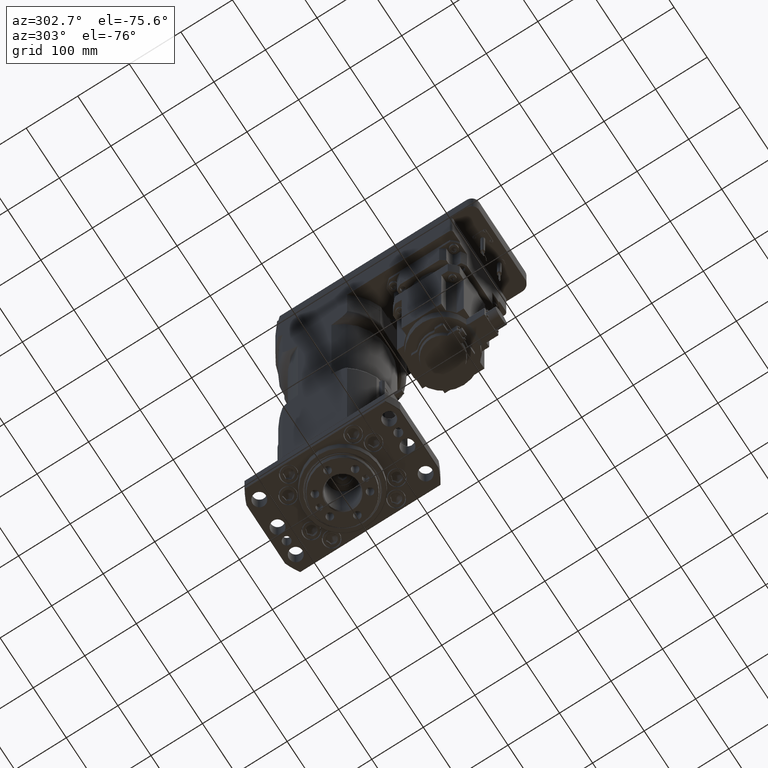
[diagram: clean part render]
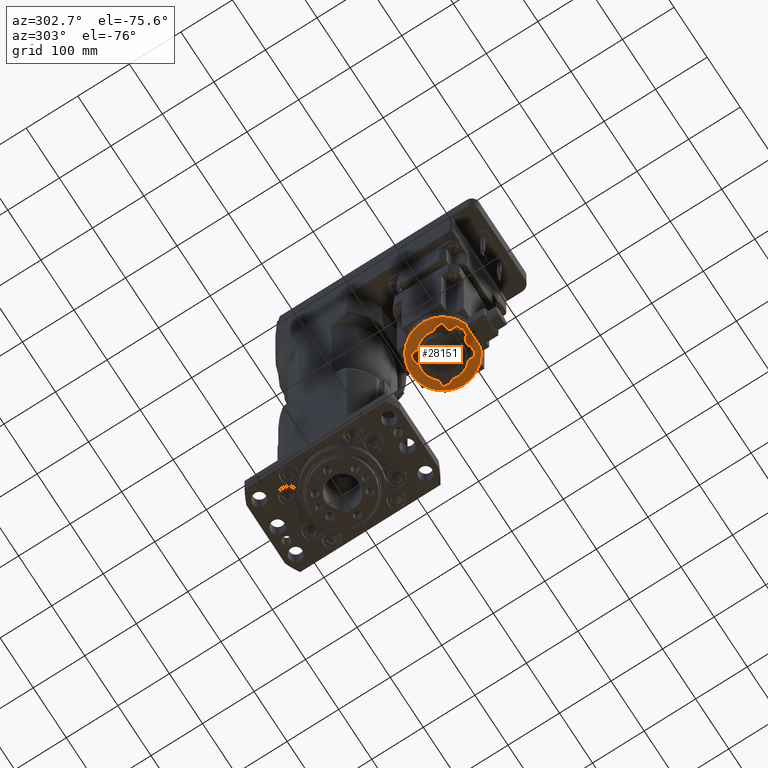
[diagram: same view with one face highlighted and labeled with its STEP entity id]
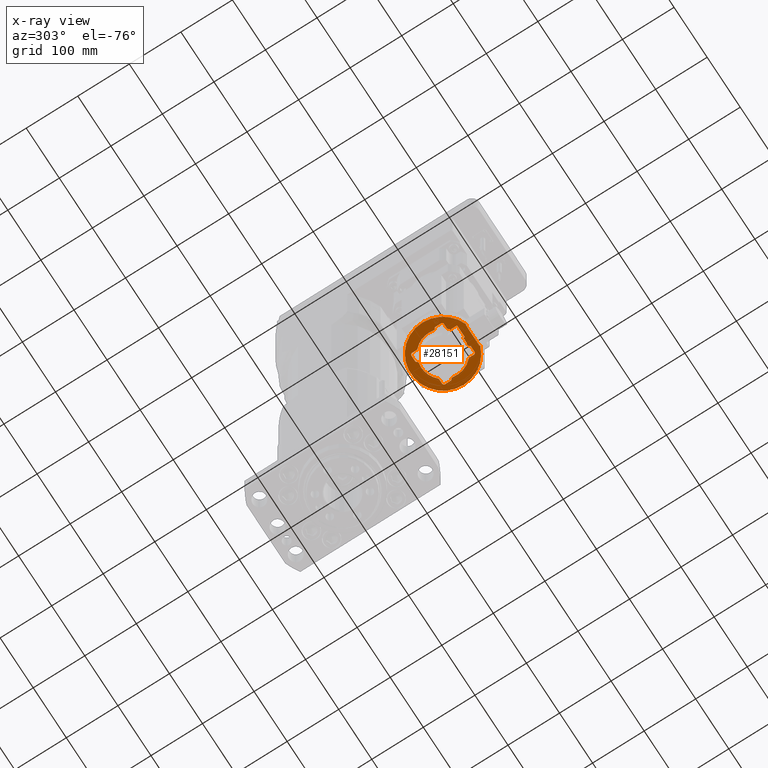
[diagram: x-ray of the same camera — body ghosted, the highlighted face saturated]
A machine part, auxiliary view. The second image highlights one B-rep face of the part: STEP entity #28151.
The next image is the same camera in x-ray: the body ghosted, the highlighted face saturated — about 0% of this face is hidden behind the body in this view.
In plain terms, the highlighted planar face has unit normal (-0, -0, 1).
Its self-contained STEP definition (entity closure, byte-faithful):
#1278=LINE('',#39887,#2897);
#1300=LINE('',#39997,#2919);
#2452=LINE('',#47689,#4071);
#2453=LINE('',#47690,#4072);
#2454=LINE('',#47693,#4073);
#2455=LINE('',#47697,#4074);
#2456=LINE('',#47701,#4075);
#2457=LINE('',#47709,#4076);
#2458=LINE('',#47713,#4077);
#2459=LINE('',#47717,#4078);
#2460=LINE('',#47722,#4079);
#2461=LINE('',#47724,#4080);
#2462=LINE('',#47730,#4081);
#2463=LINE('',#47734,#4082);
#2464=LINE('',#47738,#4083);
#2465=LINE('',#47746,#4084);
#2466=LINE('',#47750,#4085);
#2467=LINE('',#47754,#4086);
#2897=VECTOR('',#32071,10.);
#2919=VECTOR('',#32159,10.);
#4071=VECTOR('',#37019,10.);
#4072=VECTOR('',#37020,10.);
#4073=VECTOR('',#37021,10.);
#4074=VECTOR('',#37024,10.);
#4075=VECTOR('',#37027,10.);
#4076=VECTOR('',#37034,10.);
#4077=VECTOR('',#37037,10.);
#4078=VECTOR('',#37040,10.);
#4079=VECTOR('',#37045,10.);
#4080=VECTOR('',#37046,10.);
#4081=VECTOR('',#37051,10.);
#4082=VECTOR('',#37054,10.);
#4083=VECTOR('',#37057,10.);
#4084=VECTOR('',#37064,10.);
#4085=VECTOR('',#37067,10.);
#4086=VECTOR('',#37070,10.);
#4761=FACE_BOUND('',#8441,.T.);
#6492=FACE_OUTER_BOUND('',#8440,.T.);
#8440=EDGE_LOOP('',(#21969,#21970,#21971,#21972));
#8441=EDGE_LOOP('',(#21973,#21974,#21975,#21976,#21977,#21978,#21979,#21980,
#21981,#21982,#21983,#21984,#21985,#21986,#21987,#21988,#21989,#21990,#21991,
#21992,#21993,#21994,#21995,#21996,#21997,#21998,#21999,#22000,#22001,#22002,
#22003,#22004,#22005,#22006,#22007,#22008));
#10124=CIRCLE('',#30850,62.5);
#10125=CIRCLE('',#30851,2.50000000004479);
#10126=CIRCLE('',#30852,3.5);
#10127=CIRCLE('',#30853,4.49999999999986);
#10128=CIRCLE('',#30854,42.5000000000069);
#10129=CIRCLE('',#30855,1.50000000001775);
#10130=CIRCLE('',#30856,2.50000000004479);
#10131=CIRCLE('',#30857,3.5);
#10132=CIRCLE('',#30858,4.49999999999986);
#10133=CIRCLE('',#30859,42.5000000000069);
#10134=CIRCLE('',#30860,42.5000000000069);
#10135=CIRCLE('',#30861,1.50000000001775);
#10136=CIRCLE('',#30862,2.50000000004479);
#10137=CIRCLE('',#30863,3.5);
#10138=CIRCLE('',#30864,4.49999999999986);
#10139=CIRCLE('',#30865,42.5000000000069);
#10140=CIRCLE('',#30866,2.50000000004479);
#10141=CIRCLE('',#30867,3.5);
#10142=CIRCLE('',#30868,3.5);
#10143=CIRCLE('',#30869,4.49999999999986);
#10144=CIRCLE('',#30870,42.5000000000069);
#10145=CIRCLE('',#30871,1.50000000001775);
#10661=VERTEX_POINT('',#39885);
#10662=VERTEX_POINT('',#39886);
#10710=VERTEX_POINT('',#39994);
#10711=VERTEX_POINT('',#39996);
#12415=VERTEX_POINT('',#47686);
#12416=VERTEX_POINT('',#47687);
#12417=VERTEX_POINT('',#47691);
#12418=VERTEX_POINT('',#47692);
#12419=VERTEX_POINT('',#47694);
#12420=VERTEX_POINT('',#47696);
#12421=VERTEX_POINT('',#47698);
#12422=VERTEX_POINT('',#47700);
#12423=VERTEX_POINT('',#47702);
#12424=VERTEX_POINT('',#47704);
#12425=VERTEX_POINT('',#47706);
#12426=VERTEX_POINT('',#47708);
#12427=VERTEX_POINT('',#47710);
#12428=VERTEX_POINT('',#47712);
#12429=VERTEX_POINT('',#47714);
#12430=VERTEX_POINT('',#47716);
#12431=VERTEX_POINT('',#47718);
#12432=VERTEX_POINT('',#47720);
#12433=VERTEX_POINT('',#47723);
#12434=VERTEX_POINT('',#47725);
#12435=VERTEX_POINT('',#47727);
#12436=VERTEX_POINT('',#47729);
#12437=VERTEX_POINT('',#47731);
#12438=VERTEX_POINT('',#47733);
#12439=VERTEX_POINT('',#47735);
#12440=VERTEX_POINT('',#47737);
#12441=VERTEX_POINT('',#47739);
#12442=VERTEX_POINT('',#47741);
#12443=VERTEX_POINT('',#47743);
#12444=VERTEX_POINT('',#47745);
#12445=VERTEX_POINT('',#47747);
#12446=VERTEX_POINT('',#47749);
#12447=VERTEX_POINT('',#47751);
#12448=VERTEX_POINT('',#47753);
#12449=VERTEX_POINT('',#47755);
#12450=VERTEX_POINT('',#47757);
#13230=EDGE_CURVE('',#10661,#10662,#1278,.T.);
#13282=EDGE_CURVE('',#10711,#10710,#1300,.T.);
#15825=EDGE_CURVE('',#12415,#12416,#10124,.T.);
#15826=EDGE_CURVE('',#12416,#10711,#2452,.T.);
#15827=EDGE_CURVE('',#10710,#12415,#2453,.T.);
#15828=EDGE_CURVE('',#12417,#12418,#2454,.T.);
#15829=EDGE_CURVE('',#12418,#12419,#10125,.T.);
#15830=EDGE_CURVE('',#12419,#12420,#2455,.T.);
#15831=EDGE_CURVE('',#12420,#12421,#10126,.T.);
#15832=EDGE_CURVE('',#12421,#12422,#2456,.T.);
#15833=EDGE_CURVE('',#12422,#12423,#10127,.T.);
#15834=EDGE_CURVE('',#12423,#12424,#10128,.T.);
#15835=EDGE_CURVE('',#12424,#12425,#10129,.T.);
#15836=EDGE_CURVE('',#12425,#12426,#2457,.T.);
#15837=EDGE_CURVE('',#12426,#12427,#10130,.T.);
#15838=EDGE_CURVE('',#12427,#12428,#2458,.T.);
#15839=EDGE_CURVE('',#12428,#12429,#10131,.T.);
#15840=EDGE_CURVE('',#12429,#12430,#2459,.T.);
#15841=EDGE_CURVE('',#12430,#12431,#10132,.T.);
#15842=EDGE_CURVE('',#12431,#12432,#10133,.T.);
#15843=EDGE_CURVE('',#12432,#10661,#2460,.T.);
#15844=EDGE_CURVE('',#10662,#12433,#2461,.T.);
#15845=EDGE_CURVE('',#12433,#12434,#10134,.T.);
#15846=EDGE_CURVE('',#12434,#12435,#10135,.T.);
#15847=EDGE_CURVE('',#12435,#12436,#2462,.T.);
#15848=EDGE_CURVE('',#12436,#12437,#10136,.T.);
#15849=EDGE_CURVE('',#12437,#12438,#2463,.T.);
#15850=EDGE_CURVE('',#12438,#12439,#10137,.T.);
#15851=EDGE_CURVE('',#12439,#12440,#2464,.T.);
#15852=EDGE_CURVE('',#12440,#12441,#10138,.T.);
#15853=EDGE_CURVE('',#12441,#12442,#10139,.T.);
#15854=EDGE_CURVE('',#12442,#12443,#10140,.T.);
#15855=EDGE_CURVE('',#12443,#12444,#2465,.T.);
#15856=EDGE_CURVE('',#12444,#12445,#10141,.T.);
#15857=EDGE_CURVE('',#12445,#12446,#2466,.T.);
#15858=EDGE_CURVE('',#12446,#12447,#10142,.T.);
#15859=EDGE_CURVE('',#12447,#12448,#2467,.T.);
#15860=EDGE_CURVE('',#12448,#12449,#10143,.T.);
#15861=EDGE_CURVE('',#12449,#12450,#10144,.T.);
#15862=EDGE_CURVE('',#12450,#12417,#10145,.T.);
#21969=ORIENTED_EDGE('',*,*,#15825,.T.);
#21970=ORIENTED_EDGE('',*,*,#15826,.T.);
#21971=ORIENTED_EDGE('',*,*,#13282,.T.);
#21972=ORIENTED_EDGE('',*,*,#15827,.T.);
#21973=ORIENTED_EDGE('',*,*,#15828,.T.);
#21974=ORIENTED_EDGE('',*,*,#15829,.T.);
#21975=ORIENTED_EDGE('',*,*,#15830,.T.);
#21976=ORIENTED_EDGE('',*,*,#15831,.T.);
#21977=ORIENTED_EDGE('',*,*,#15832,.T.);
#21978=ORIENTED_EDGE('',*,*,#15833,.T.);
#21979=ORIENTED_EDGE('',*,*,#15834,.T.);
#21980=ORIENTED_EDGE('',*,*,#15835,.T.);
#21981=ORIENTED_EDGE('',*,*,#15836,.T.);
#21982=ORIENTED_EDGE('',*,*,#15837,.T.);
#21983=ORIENTED_EDGE('',*,*,#15838,.T.);
#21984=ORIENTED_EDGE('',*,*,#15839,.T.);
#21985=ORIENTED_EDGE('',*,*,#15840,.T.);
#21986=ORIENTED_EDGE('',*,*,#15841,.T.);
#21987=ORIENTED_EDGE('',*,*,#15842,.T.);
#21988=ORIENTED_EDGE('',*,*,#15843,.T.);
#21989=ORIENTED_EDGE('',*,*,#13230,.T.);
#21990=ORIENTED_EDGE('',*,*,#15844,.T.);
#21991=ORIENTED_EDGE('',*,*,#15845,.T.);
#21992=ORIENTED_EDGE('',*,*,#15846,.T.);
#21993=ORIENTED_EDGE('',*,*,#15847,.T.);
#21994=ORIENTED_EDGE('',*,*,#15848,.T.);
#21995=ORIENTED_EDGE('',*,*,#15849,.T.);
#21996=ORIENTED_EDGE('',*,*,#15850,.T.);
#21997=ORIENTED_EDGE('',*,*,#15851,.T.);
#21998=ORIENTED_EDGE('',*,*,#15852,.T.);
#21999=ORIENTED_EDGE('',*,*,#15853,.T.);
#22000=ORIENTED_EDGE('',*,*,#15854,.T.);
#22001=ORIENTED_EDGE('',*,*,#15855,.T.);
#22002=ORIENTED_EDGE('',*,*,#15856,.T.);
#22003=ORIENTED_EDGE('',*,*,#15857,.T.);
#22004=ORIENTED_EDGE('',*,*,#15858,.T.);
#22005=ORIENTED_EDGE('',*,*,#15859,.T.);
#22006=ORIENTED_EDGE('',*,*,#15860,.T.);
#22007=ORIENTED_EDGE('',*,*,#15861,.T.);
#22008=ORIENTED_EDGE('',*,*,#15862,.T.);
#25116=PLANE('',#30849);
#28151=ADVANCED_FACE('',(#6492,#4761),#25116,.F.);
#30849=AXIS2_PLACEMENT_3D('',#47685,#37015,#37016);
#30850=AXIS2_PLACEMENT_3D('',#47688,#37017,#37018);
#30851=AXIS2_PLACEMENT_3D('',#47695,#37022,#37023);
#30852=AXIS2_PLACEMENT_3D('',#47699,#37025,#37026);
#30853=AXIS2_PLACEMENT_3D('',#47703,#37028,#37029);
#30854=AXIS2_PLACEMENT_3D('',#47705,#37030,#37031);
#30855=AXIS2_PLACEMENT_3D('',#47707,#37032,#37033);
#30856=AXIS2_PLACEMENT_3D('',#47711,#37035,#37036);
#30857=AXIS2_PLACEMENT_3D('',#47715,#37038,#37039);
#30858=AXIS2_PLACEMENT_3D('',#47719,#37041,#37042);
#30859=AXIS2_PLACEMENT_3D('',#47721,#37043,#37044);
#30860=AXIS2_PLACEMENT_3D('',#47726,#37047,#37048);
#30861=AXIS2_PLACEMENT_3D('',#47728,#37049,#37050);
#30862=AXIS2_PLACEMENT_3D('',#47732,#37052,#37053);
#30863=AXIS2_PLACEMENT_3D('',#47736,#37055,#37056);
#30864=AXIS2_PLACEMENT_3D('',#47740,#37058,#37059);
#30865=AXIS2_PLACEMENT_3D('',#47742,#37060,#37061);
#30866=AXIS2_PLACEMENT_3D('',#47744,#37062,#37063);
#30867=AXIS2_PLACEMENT_3D('',#47748,#37065,#37066);
#30868=AXIS2_PLACEMENT_3D('',#47752,#37068,#37069);
#30869=AXIS2_PLACEMENT_3D('',#47756,#37071,#37072);
#30870=AXIS2_PLACEMENT_3D('',#47758,#37073,#37074);
#30871=AXIS2_PLACEMENT_3D('',#47759,#37075,#37076);
#32071=DIRECTION('',(1.,-1.36948084685462E-15,3.0399476265779E-15));
#32159=DIRECTION('',(-1.,1.36948084685462E-15,-3.0399476265779E-15));
#37015=DIRECTION('center_axis',(-3.0399476265779E-15,-2.00012841675897E-30,
1.));
#37016=DIRECTION('ref_axis',(-1.,0.,-5.6843418860808E-15));
#37017=DIRECTION('center_axis',(3.0399476265779E-15,2.00012841675897E-30,
-1.));
#37018=DIRECTION('ref_axis',(-1.,1.36948084685462E-15,-3.0399476265779E-15));
#37019=DIRECTION('',(1.73448567686837E-15,1.,7.27287403348834E-30));
#37020=DIRECTION('',(-1.61281740019712E-15,-1.,-6.90300884459175E-30));
#37021=DIRECTION('',(-0.628997080994759,0.777407661462166,-1.91211818349444E-15));
#37022=DIRECTION('center_axis',(-3.0399476265779E-15,-2.00012841675897E-30,
1.));
#37023=DIRECTION('ref_axis',(1.36948084685462E-15,1.,6.16327846679857E-30));
#37024=DIRECTION('',(-1.,-3.45515851314534E-15,-3.0399476265779E-15));
#37025=DIRECTION('center_axis',(-3.0399476265779E-15,-2.00012841675897E-30,
1.));
#37026=DIRECTION('ref_axis',(-1.,1.36948084685462E-15,-3.0399476265779E-15));
#37027=DIRECTION('',(-1.36948084685462E-15,-1.,-6.16327846679857E-30));
#37028=DIRECTION('center_axis',(3.0399476265779E-15,2.00012841675897E-30,
-1.));
#37029=DIRECTION('ref_axis',(-1.,-7.24963093486817E-13,-3.0399476265779E-15));
#37030=DIRECTION('center_axis',(-3.0399476265779E-15,-2.00012841675897E-30,
1.));
#37031=DIRECTION('ref_axis',(-0.977747261156389,-0.209786303893223,-2.97230046594541E-15));
#37032=DIRECTION('center_axis',(3.0399476265779E-15,2.00012841675897E-30,
-1.));
#37033=DIRECTION('ref_axis',(-0.977747261154026,-0.209786303904237,-2.97230046593822E-15));
#37034=DIRECTION('',(-0.777407661462387,-0.628997080994485,-2.36327857534606E-15));
#37035=DIRECTION('center_axis',(-3.0399476265779E-15,-2.00012841675897E-30,
1.));
#37036=DIRECTION('ref_axis',(-1.,-1.28413738683469E-14,-3.0399476265779E-15));
#37037=DIRECTION('',(-1.36948084685462E-15,-1.,-6.16327846679857E-30));
#37038=DIRECTION('center_axis',(-3.0399476265779E-15,-2.00012841675897E-30,
1.));
#37039=DIRECTION('ref_axis',(-1.36948084685462E-15,-1.,-6.16327846679857E-30));
#37040=DIRECTION('',(1.,8.41680519092312E-16,3.0399476265779E-15));
#37041=DIRECTION('center_axis',(3.0399476265779E-15,2.00012841675897E-30,
-1.));
#37042=DIRECTION('ref_axis',(1.44203577255925E-14,-1.,4.18370038255603E-29));
#37043=DIRECTION('center_axis',(-3.0399476265779E-15,-2.00012841675897E-30,
1.));
#37044=DIRECTION('ref_axis',(0.209786303893437,-0.977747261156343,6.37739376609401E-16));
#37045=DIRECTION('',(-1.54711653079465E-15,-1.,-6.70328164258759E-30));
#37046=DIRECTION('',(1.63593437276466E-15,1.,6.9732832304821E-30));
#37047=DIRECTION('center_axis',(-3.0399476265779E-15,-2.00012841675897E-30,
1.));
#37048=DIRECTION('ref_axis',(0.209786303893437,-0.977747261156343,6.37739376609401E-16));
#37049=DIRECTION('center_axis',(3.0399476265779E-15,2.00012841675897E-30,
-1.));
#37050=DIRECTION('ref_axis',(0.209786303889696,-0.977747261157146,6.37739376598029E-16));
#37051=DIRECTION('',(0.62899708099476,-0.777407661462164,1.91211818349445E-15));
#37052=DIRECTION('center_axis',(-3.0399476265779E-15,-2.00012841675897E-30,
1.));
#37053=DIRECTION('ref_axis',(3.43243745996591E-13,-1.,1.04144288256328E-27));
#37054=DIRECTION('',(1.,-1.36948084685462E-15,3.0399476265779E-15));
#37055=DIRECTION('center_axis',(-3.0399476265779E-15,-2.00012841675897E-30,
1.));
#37056=DIRECTION('ref_axis',(1.,-1.36948084685462E-15,3.0399476265779E-15));
#37057=DIRECTION('',(-4.78081976335488E-12,1.,-1.45314415642906E-26));
#37058=DIRECTION('center_axis',(3.0399476265779E-15,2.00012841675897E-30,
-1.));
#37059=DIRECTION('ref_axis',(1.,-1.36948084685462E-15,3.0399476265779E-15));
#37060=DIRECTION('center_axis',(-3.0399476265779E-15,-2.00012841675897E-30,
1.));
#37061=DIRECTION('ref_axis',(0.980529773881937,0.196370472655735,2.98075915890136E-15));
#37062=DIRECTION('center_axis',(3.0399476265779E-15,2.00012841675897E-30,
-1.));
#37063=DIRECTION('ref_axis',(0.980529773884271,0.196370472644081,2.98075915890845E-15));
#37064=DIRECTION('',(0.777407661461842,0.628997080995159,2.3632785753444E-15));
#37065=DIRECTION('center_axis',(-3.0399476265779E-15,-2.00012841675897E-30,
1.));
#37066=DIRECTION('ref_axis',(1.,1.00136624261784E-13,3.0399476265779E-15));
#37067=DIRECTION('',(4.7311506699481E-15,1.,1.63825786668501E-29));
#37068=DIRECTION('center_axis',(-3.0399476265779E-15,-2.00012841675897E-30,
1.));
#37069=DIRECTION('ref_axis',(1.36948084685462E-15,1.,6.16327846679857E-30));
#37070=DIRECTION('',(-1.,4.54657560865977E-13,-3.0399476265779E-15));
#37071=DIRECTION('center_axis',(3.0399476265779E-15,2.00012841675897E-30,
-1.));
#37072=DIRECTION('ref_axis',(-1.83678173687202E-14,1.,-5.38370743986983E-29));
#37073=DIRECTION('center_axis',(-3.0399476265779E-15,-2.00012841675897E-30,
1.));
#37074=DIRECTION('ref_axis',(-0.20978630389338,0.977747261156355,-6.3773937660923E-16));
#37075=DIRECTION('center_axis',(3.0399476265779E-15,2.00012841675897E-30,
-1.));
#37076=DIRECTION('ref_axis',(-0.209786303893689,0.977747261156289,-6.37739376610168E-16));
#39885=CARTESIAN_POINT('',(-27.9000000000036,-240.000000000004,461.999999999956));
#39886=CARTESIAN_POINT('',(-4.50000000000363,-240.000000000004,461.999999999956));
#39887=CARTESIAN_POINT('',(-13.9500000000036,-240.000000000004,461.999999999956));
#39994=CARTESIAN_POINT('',(-21.0000000000036,-252.500000000004,461.999999999956));
#39996=CARTESIAN_POINT('',(20.9999999999964,-252.500000000004,461.999999999957));
#39997=CARTESIAN_POINT('',(-10.5000000000036,-252.500000000004,461.999999999956));
#47685=CARTESIAN_POINT('Origin',(-3.55603087786637E-12,-195.000000000004,
461.999999999956));
#47686=CARTESIAN_POINT('',(-21.0000000000036,-253.866374102712,461.999999999956));
#47687=CARTESIAN_POINT('',(20.9999999999964,-253.866374102712,461.999999999957));
#47688=CARTESIAN_POINT('Origin',(-3.55349826036313E-12,-195.000000000004,
461.999999999956));
#47689=CARTESIAN_POINT('',(20.9999999999964,-223.750000000004,461.999999999957));
#47690=CARTESIAN_POINT('',(-21.0000000000036,-242.000000000004,461.999999999956));
#47691=CARTESIAN_POINT('',(-10.3967088634607,-152.922616130597,461.999999999956));
#47692=CARTESIAN_POINT('',(-12.0109425461191,-150.927507297494,461.999999999956));
#47693=CARTESIAN_POINT('',(1.14048735678282,-167.181990306428,461.999999999956));
#47694=CARTESIAN_POINT('',(-13.9544616997726,-149.999999999983,461.999999999956));
#47695=CARTESIAN_POINT('Origin',(-13.9544616997726,-152.499999999983,461.999999999956));
#47696=CARTESIAN_POINT('',(-24.9999930246275,-149.999999999983,461.999999999956));
#47697=CARTESIAN_POINT('',(-12.4999965123156,-149.999999999983,461.999999999956));
#47698=CARTESIAN_POINT('',(-28.4999930246275,-153.499999999983,461.999999999956));
#47699=CARTESIAN_POINT('Origin',(-24.9999930246275,-153.499999999983,461.999999999956));
#47700=CARTESIAN_POINT('',(-28.4999930246275,-161.533592060504,461.999999999956));
#47701=CARTESIAN_POINT('',(-28.4999930246275,-178.266796030254,461.999999999956));
#47702=CARTESIAN_POINT('',(-29.840419224389,-164.737822607898,461.999999999956));
#47703=CARTESIAN_POINT('Origin',(-32.9999930246205,-161.533592060508,461.999999999956));
#47704=CARTESIAN_POINT('',(-41.5542585991096,-203.915917915457,461.999999999956));
#47705=CARTESIAN_POINT('Origin',(4.37597661570626E-11,-194.999999999994,
461.999999999956));
#47706=CARTESIAN_POINT('',(-42.077383869342,-205.39670886349,461.999999999956));
#47707=CARTESIAN_POINT('Origin',(-43.020879490825,-204.23059737131,461.999999999956));
#47708=CARTESIAN_POINT('',(-44.0724927024422,-207.010942546145,461.999999999956));
#47709=CARTESIAN_POINT('',(-27.8180096935162,-193.859512643259,461.999999999956));
#47710=CARTESIAN_POINT('',(-44.9999999999554,-208.954461699801,461.999999999956));
#47711=CARTESIAN_POINT('Origin',(-42.4999999999553,-208.9544616998,461.999999999956));
#47712=CARTESIAN_POINT('',(-44.9999999999554,-219.999993024657,461.999999999956));
#47713=CARTESIAN_POINT('',(-44.9999999999554,-207.499996512331,461.999999999956));
#47714=CARTESIAN_POINT('',(-41.4999999999554,-223.499993024657,461.999999999956));
#47715=CARTESIAN_POINT('Origin',(-41.4999999999554,-219.999993024657,461.999999999956));
#47716=CARTESIAN_POINT('',(-33.4664079394342,-223.499993024657,461.999999999956));
#47717=CARTESIAN_POINT('',(-16.7332039697189,-223.499993024657,461.999999999956));
#47718=CARTESIAN_POINT('',(-30.2621773920329,-224.840419224427,461.999999999956));
#47719=CARTESIAN_POINT('Origin',(-33.4664079394341,-227.999993024657,461.999999999956));
#47720=CARTESIAN_POINT('',(-27.9000000000036,-227.059943855184,461.999999999956));
#47721=CARTESIAN_POINT('Origin',(4.37597661570626E-11,-194.999999999994,
461.999999999956));
#47722=CARTESIAN_POINT('',(-27.9000000000036,-205.000000000004,461.999999999956));
#47723=CARTESIAN_POINT('',(-4.50000000000362,-237.261093218227,461.999999999956));
#47724=CARTESIAN_POINT('',(-4.50000000000359,-217.500000000004,461.999999999956));
#47725=CARTESIAN_POINT('',(8.91591791551344,-236.554258599132,461.999999999956));
#47726=CARTESIAN_POINT('Origin',(4.37597661570626E-11,-194.999999999994,
461.999999999956));
#47727=CARTESIAN_POINT('',(10.3967088635485,-237.077383869369,461.999999999956));
#47728=CARTESIAN_POINT('Origin',(9.2305973713517,-238.020879490885,461.999999999956));
#47729=CARTESIAN_POINT('',(12.010942546207,-239.072492702473,461.999999999956));
#47730=CARTESIAN_POINT('',(-1.14048735670359,-222.818009693528,461.999999999956));
#47731=CARTESIAN_POINT('',(13.9544616998619,-239.999999999983,461.999999999956));
#47732=CARTESIAN_POINT('Origin',(13.9544616998611,-237.499999999982,461.999999999956));
#47733=CARTESIAN_POINT('',(24.9999930247168,-239.999999999983,461.999999999957));
#47734=CARTESIAN_POINT('',(12.4999965123566,-239.999999999983,461.999999999956));
#47735=CARTESIAN_POINT('',(28.4999930247168,-236.499999999983,461.999999999957));
#47736=CARTESIAN_POINT('Origin',(24.9999930247168,-236.499999999983,461.999999999957));
#47737=CARTESIAN_POINT('',(28.4999930246784,-228.466407939462,461.999999999957));
#47738=CARTESIAN_POINT('',(28.4999930245984,-211.733203969665,461.999999999957));
#47739=CARTESIAN_POINT('',(29.8404192244557,-225.262177392037,461.999999999957));
#47740=CARTESIAN_POINT('Origin',(32.9999930247168,-228.466407939462,461.999999999957));
#47741=CARTESIAN_POINT('',(41.6725153899819,-186.654254912134,461.999999999957));
#47742=CARTESIAN_POINT('Origin',(4.37597661570626E-11,-194.999999999994,
461.999999999956));
#47743=CARTESIAN_POINT('',(42.551347122243,-184.219809576807,461.999999999957));
#47744=CARTESIAN_POINT('Origin',(44.1238398247365,-186.163328730515,461.999999999957));
#47745=CARTESIAN_POINT('',(43.7014897835271,-183.289234265374,461.999999999957));
#47746=CARTESIAN_POINT('',(27.6325082340814,-196.290575762524,461.999999999957));
#47747=CARTESIAN_POINT('',(45.0000000000447,-180.568307450257,461.999999999957));
#47748=CARTESIAN_POINT('Origin',(41.5000000000465,-180.568307450258,461.999999999957));
#47749=CARTESIAN_POINT('',(45.0000000000447,-170.000006975313,461.999999999957));
#47750=CARTESIAN_POINT('',(45.0000000000447,-182.500003487659,461.999999999957));
#47751=CARTESIAN_POINT('',(41.5000000000447,-166.500006975313,461.999999999957));
#47752=CARTESIAN_POINT('Origin',(41.5000000000447,-170.000006975313,461.999999999957));
#47753=CARTESIAN_POINT('',(33.4664079395235,-166.500006975309,461.999999999957));
#47754=CARTESIAN_POINT('',(16.7332039697665,-166.500006975302,461.999999999957));
#47755=CARTESIAN_POINT('',(30.2621773921248,-165.15958077554,461.999999999957));
#47756=CARTESIAN_POINT('Origin',(33.4664079395234,-162.000006975313,461.999999999957));
#47757=CARTESIAN_POINT('',(-8.91591791542716,-153.445741400838,461.999999999956));
#47758=CARTESIAN_POINT('Origin',(4.37597661570626E-11,-194.999999999994,
461.999999999956));
#47759=CARTESIAN_POINT('Origin',(-9.23059737126793,-151.979120509103,461.999999999956));